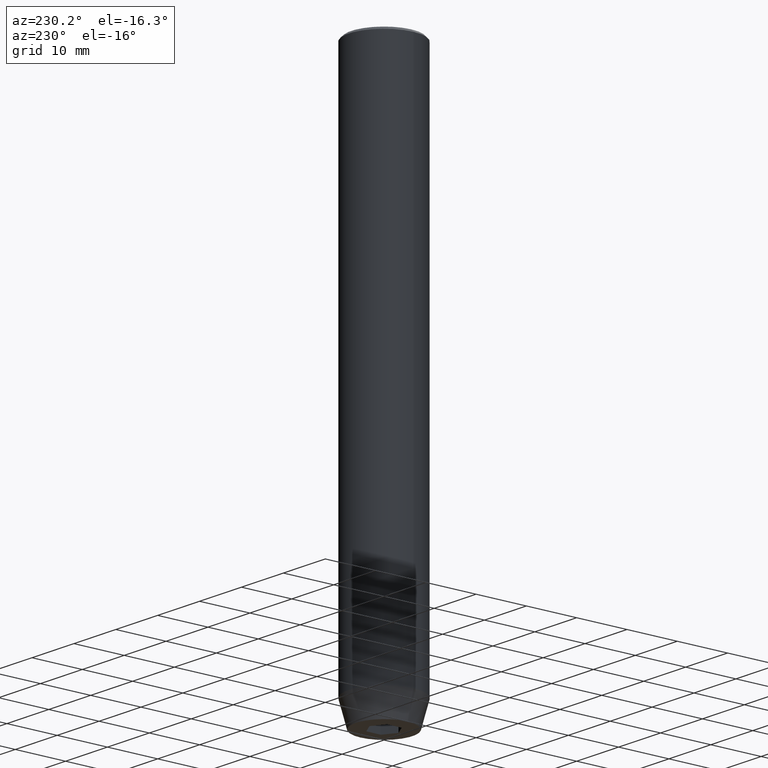
[diagram: clean part render]
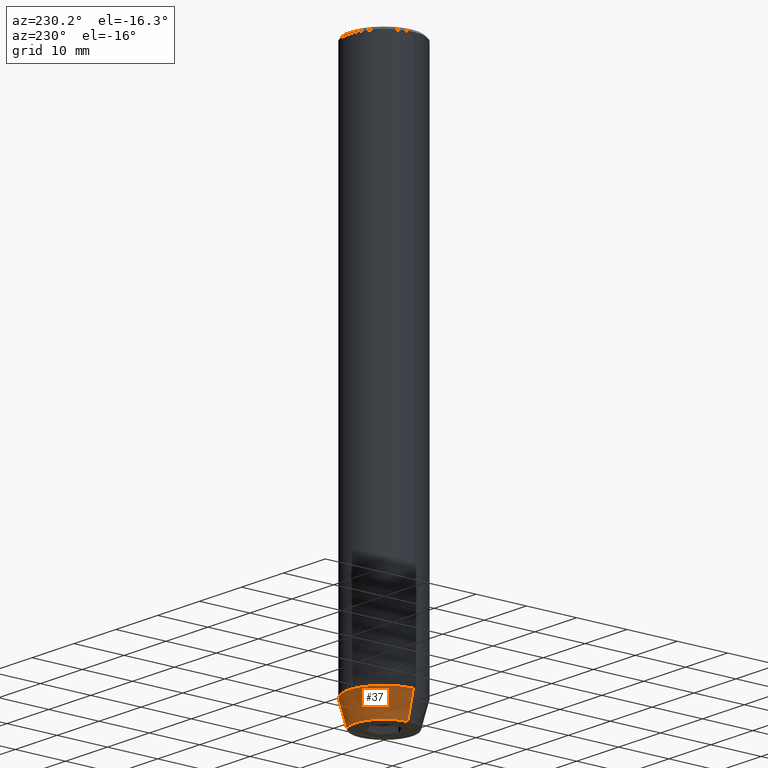
[diagram: same view with one face highlighted and labeled with its STEP entity id]
A machine part, auxiliary view. The second image highlights one B-rep face of the part: STEP entity #37.
In plain terms, the highlighted conical surface has half-angle 15 deg.
Its self-contained STEP definition (entity closure, byte-faithful):
#1 = DIRECTION ( 'NONE',  ( 0.2588190451025213501, 0.000000000000000000, 0.9659258262890680902 ) ) ;
#16 = DIRECTION ( 'NONE',  ( -0.000000000000000000, -0.000000000000000000, 1.000000000000000000 ) ) ;
#37 = ADVANCED_FACE ( 'NONE', ( #185 ), #139, .T. ) ;
#59 = EDGE_CURVE ( 'NONE', #153, #346, #473, .T. ) ;
#65 = VECTOR ( 'NONE', #193, 1000.000000000000000 ) ;
#92 = EDGE_CURVE ( 'NONE', #346, #340, #381, .T. ) ;
#106 = DIRECTION ( 'NONE',  ( -0.000000000000000000, -0.000000000000000000, 1.000000000000000000 ) ) ;
#139 = CONICAL_SURFACE ( 'NONE', #202, 7.000000000000000000, 0.2617993877991500740 ) ;
#153 = VERTEX_POINT ( 'NONE', #158 ) ;
#157 = DIRECTION ( 'NONE',  ( 1.000000000000000000, 0.000000000000000000, 0.000000000000000000 ) ) ;
#158 = CARTESIAN_POINT ( 'NONE',  ( 5.660254037844381969, 0.000000000000000000, -110.0000000000000142 ) ) ;
#169 = CARTESIAN_POINT ( 'NONE',  ( 7.000000000000000000, 0.000000000000000000, -105.0000000000000142 ) ) ;
#185 = FACE_OUTER_BOUND ( 'NONE', #309, .T. ) ;
#193 = DIRECTION ( 'NONE',  ( -0.2588190451025213501, 3.169619151431772337E-17, 0.9659258262890680902 ) ) ;
#199 = DIRECTION ( 'NONE',  ( 1.000000000000000000, 0.000000000000000000, 0.000000000000000000 ) ) ;
#202 = AXIS2_PLACEMENT_3D ( 'NONE', #547, #16, #514 ) ;
#204 = CARTESIAN_POINT ( 'NONE',  ( -7.000000000000000000, 8.572527594031473190E-16, -105.0000000000000142 ) ) ;
#241 = CARTESIAN_POINT ( 'NONE',  ( -5.660254037844381969, 7.752169791919238770E-16, -110.0000000000000142 ) ) ;
#258 = VERTEX_POINT ( 'NONE', #169 ) ;
#278 = CARTESIAN_POINT ( 'NONE',  ( 7.000000000000000000, 0.000000000000000000, -105.0000000000000142 ) ) ;
#307 = EDGE_CURVE ( 'NONE', #153, #258, #331, .T. ) ;
#309 = EDGE_LOOP ( 'NONE', ( #476, #556, #424, #527 ) ) ;
#331 = LINE ( 'NONE', #278, #492 ) ;
#340 = VERTEX_POINT ( 'NONE', #406 ) ;
#346 = VERTEX_POINT ( 'NONE', #241 ) ;
#347 = CIRCLE ( 'NONE', #374, 7.000000000000000000 ) ;
#352 = CARTESIAN_POINT ( 'NONE',  ( 0.000000000000000000, 0.000000000000000000, -105.0000000000000142 ) ) ;
#374 = AXIS2_PLACEMENT_3D ( 'NONE', #352, #481, #157 ) ;
#381 = LINE ( 'NONE', #204, #65 ) ;
#406 = CARTESIAN_POINT ( 'NONE',  ( -7.000000000000000000, 8.572527594031473190E-16, -105.0000000000000142 ) ) ;
#424 = ORIENTED_EDGE ( 'NONE', *, *, #447, .F. ) ;
#447 = EDGE_CURVE ( 'NONE', #258, #340, #347, .T. ) ;
#452 = AXIS2_PLACEMENT_3D ( 'NONE', #466, #106, #199 ) ;
#466 = CARTESIAN_POINT ( 'NONE',  ( 0.000000000000000000, 0.000000000000000000, -110.0000000000000142 ) ) ;
#473 = CIRCLE ( 'NONE', #452, 5.660254037844381969 ) ;
#476 = ORIENTED_EDGE ( 'NONE', *, *, #59, .T. ) ;
#481 = DIRECTION ( 'NONE',  ( -0.000000000000000000, -0.000000000000000000, 1.000000000000000000 ) ) ;
#492 = VECTOR ( 'NONE', #1, 1000.000000000000000 ) ;
#514 = DIRECTION ( 'NONE',  ( 1.000000000000000000, 0.000000000000000000, 0.000000000000000000 ) ) ;
#527 = ORIENTED_EDGE ( 'NONE', *, *, #307, .F. ) ;
#547 = CARTESIAN_POINT ( 'NONE',  ( 0.000000000000000000, 0.000000000000000000, -105.0000000000000142 ) ) ;
#556 = ORIENTED_EDGE ( 'NONE', *, *, #92, .T. ) ;